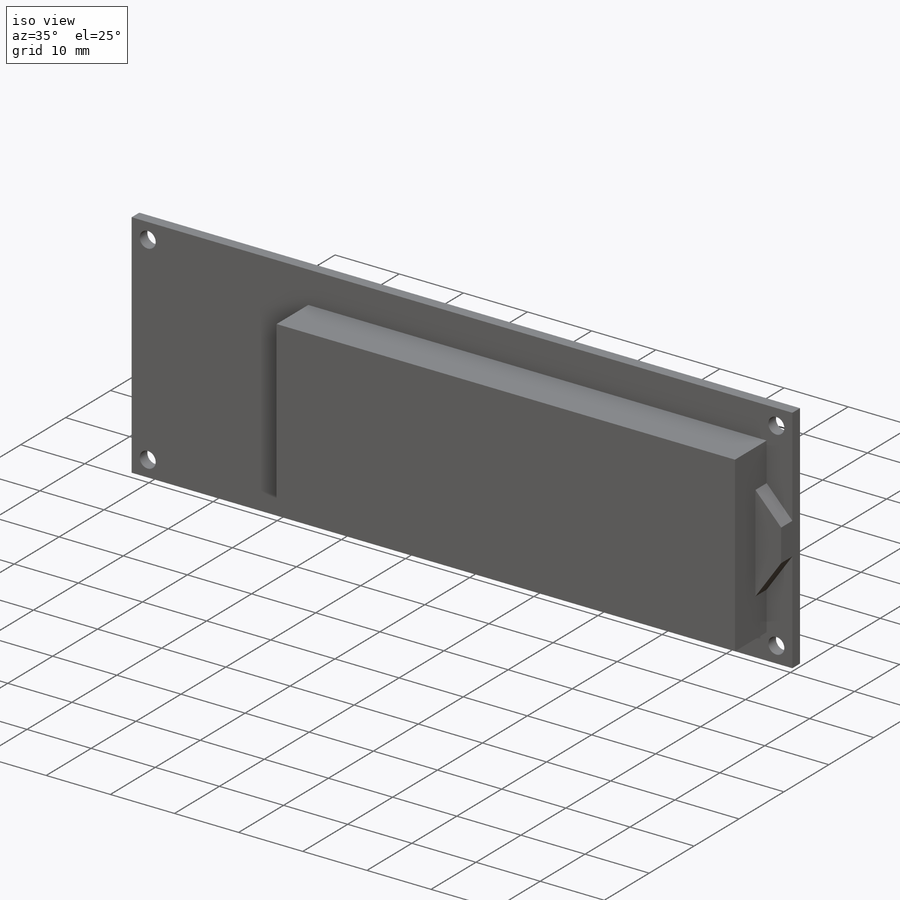
[diagram: iso view]
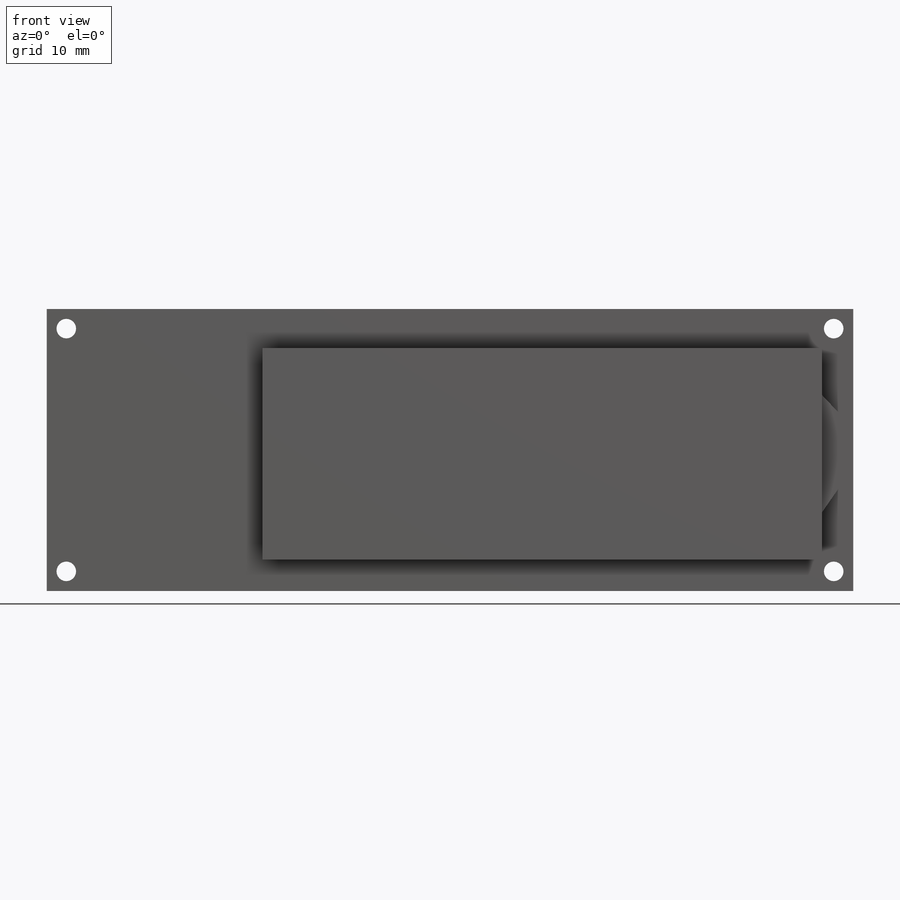
[diagram: front view]
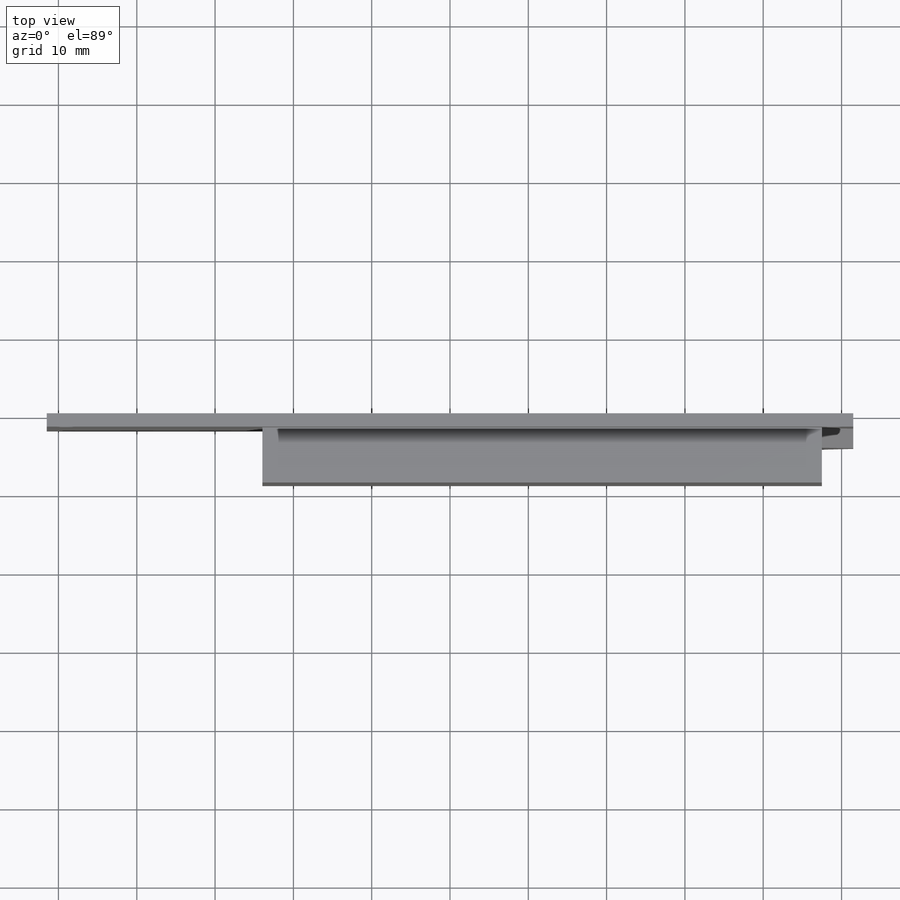
[diagram: top view]
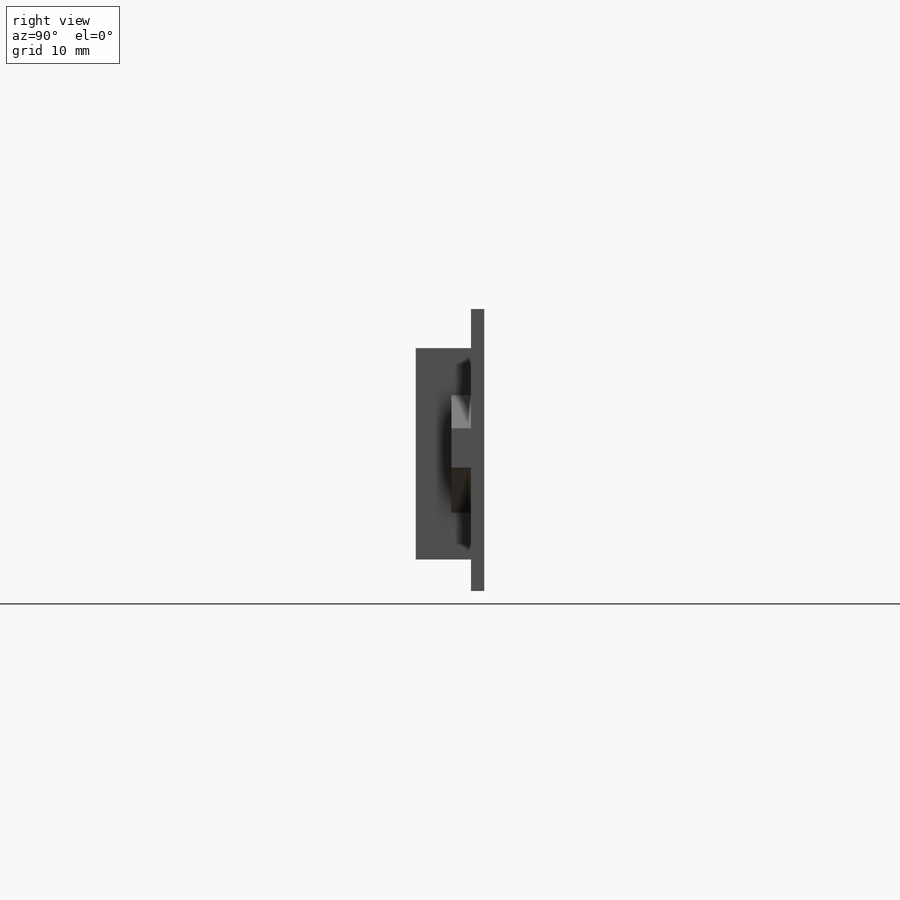
[diagram: right view]
SOLIDWORKS PART (.sldprt)
format: sldprt  version: not decoded by parser v0  size: 200,704 bytes
history: native  units: mm
features: sketch x4, plane x3, extrude x3, material x1, cut_extrude x1 (+8 scaffold rows collapsed)
feature tree (20):
  scaffold x8  (default folders/planes/origin — collapsed)
  material  "PA tipo 6"
  plane  "Alzado"
  plane  "Planta"
  plane  "Vista lateral"
  sketch  "Croquis1"  dims[D1=103.0mm D2=36.0mm]
  extrude  "Saliente-Extruir1"  Depth=1.7mm
  sketch  "Croquis2"  dims[D1=71.45mm D2=27.0mm D3=4.01mm D4=4.01mm]
  extrude  "Saliente-Extruir2"  Depth=7.05mm
  sketch  "Croquis3"  dims[c1.D1=2.5mm c1.D4=2.5mm c1.D7=2.5mm c1.D10=2.5mm c1.D2=2.5mm c1.D3=2.5mm c1.D5=2.5mm c1.D6=2.5mm c1.D8=2.5mm c1.D9=~3.394113mm c2.D9=90.0deg c3.D9=2.5mm c3.D11=2.5mm c3.D12=2.5mm]
  cut_extrude  "Cortar-Extruir1"  Depth=6mm
  sketch  "Croquis4"  dims[D1=5.01mm D2=15.0mm D3=7.5mm D4=~5.831683mm]
  extrude  "Saliente-Extruir3"  Depth=2.5mm
decode coverage: 8 of 8 modeling features carry decoded parameters
note: ~ marks probable driven/reference dimensions
note: suppression state not decoded; provenance and decode notes live in map.json
